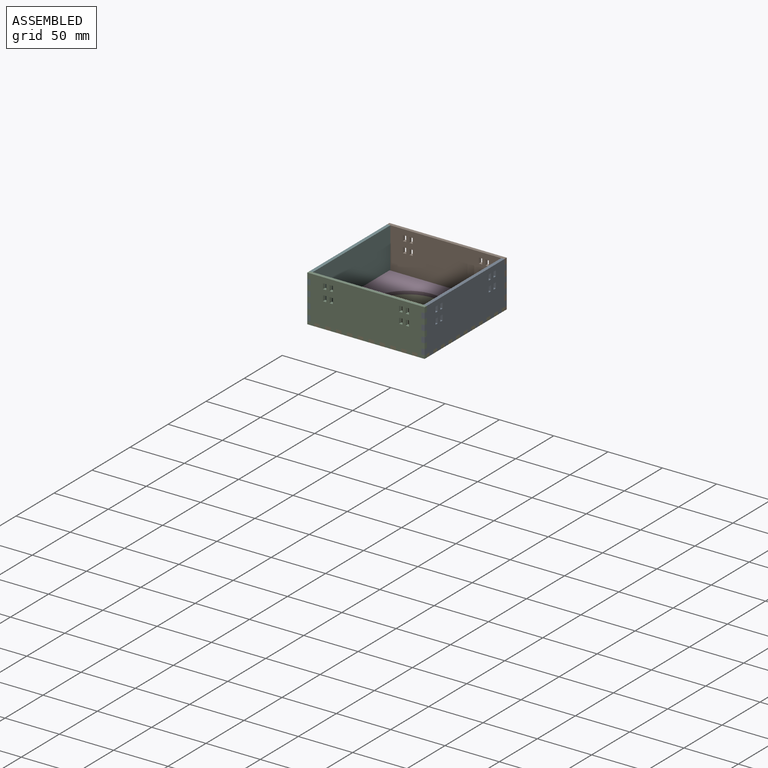
[diagram: assembled view]
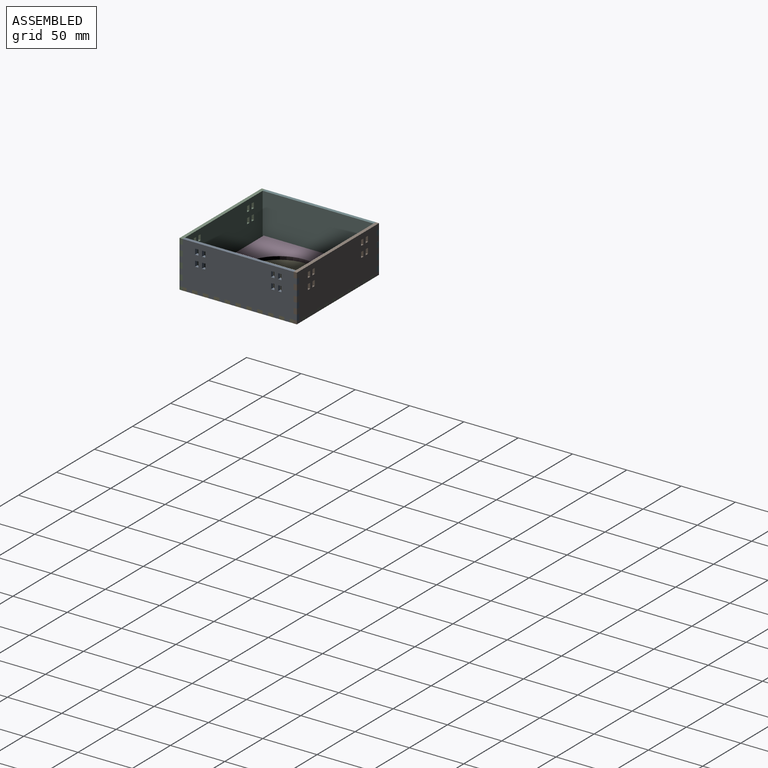
[diagram: assembled view, second angle]
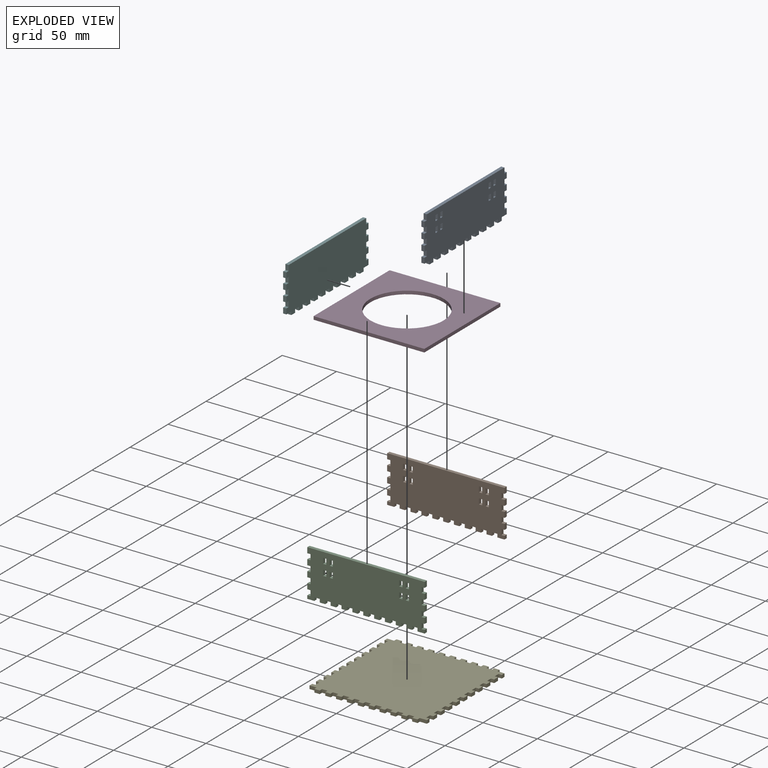
[diagram: exploded view]
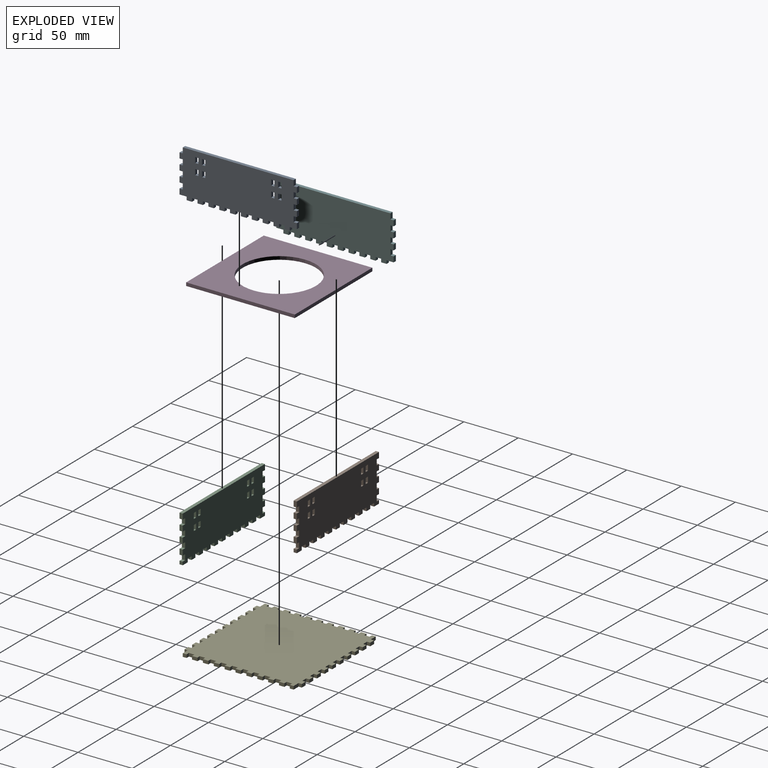
[diagram: exploded view, second angle]
ASSEMBLY  parts=6 mates=4
PART A: 106 faces, bbox 108x3x43 mm
  f0: plane 108x43mm, normal (0,-1,0), area 4230mm2, adj f2,f3,f4,f5,f6,f7,f8,f9
  f1: plane 108x43mm, normal (0,1,0), area 4230mm2, adj f2,f3,f4,f5,f6,f7,f8,f9
  f2: plane 6.5x3mm, normal (0,0,-1), area 19.5mm2, adj f0,f1,f23,f73
  f3: plane 5x3mm, normal (0,0,-1), area 15mm2, adj f0,f1,f68,f72
  f4: plane 5x3mm, normal (0,0,-1), area 15mm2, adj f0,f1,f63,f67
  f5: plane 5x3mm, normal (0,0,-1), area 15mm2, adj f0,f1,f60,f64
  f6: plane 5x3mm, normal (0,0,-1), area 15mm2, adj f0,f1,f61,f70
  f7: plane 5x3mm, normal (0,0,-1), area 15mm2, adj f0,f1,f54,f58
  f8: plane 5x3mm, normal (0,0,-1), area 15mm2, adj f0,f1,f51,f55
  f9: plane 5x3mm, normal (0,0,-1), area 15mm2, adj f0,f1,f48,f52
  f10: plane 5x3mm, normal (0,0,-1), area 15mm2, adj f0,f1,f45,f49
  f11: plane 5x3mm, normal (0,0,-1), area 15mm2, adj f0,f1,f46,f66
  f12: plane 5x3mm, normal (1,0,0), area 15mm2, adj f0,f1,f35,f42
  f13: plane 5x3mm, normal (1,0,0), area 15mm2, adj f0,f1,f38,f41
  f14: plane 5x3mm, normal (1,0,0), area 15mm2, adj f0,f1,f33,f36
  f15: plane 5x3mm, normal (-1,0,0), area 15mm2, adj f0,f1,f28,f30
  f16: plane 5x3mm, normal (-1,0,0), area 15mm2, adj f0,f1,f25,f27
  f17: plane 5x3mm, normal (-1,0,0), area 15mm2, adj f0,f1,f22,f24
  f18: plane 5x3mm, normal (1,0,0), area 15mm2, adj f0,f1,f19,f40
  f19: plane 102x3mm, normal (0,0,1), area 306mm2, adj f0,f1,f18,f20
  f20: plane 5x3mm, normal (-1,0,0), area 15mm2, adj f0,f1,f19,f31
  f21: plane 6.5x3mm, normal (0,0,-1), area 19.5mm2, adj f0,f1,f37,f57
  f22: plane 3x3mm, normal (0,0,1), area 9mm2, adj f0,f1,f17,f23
  f23: plane 5x3mm, normal (-1,0,0), area 15mm2, adj f0,f1,f2,f22
  f24: plane 3x3mm, normal (0,0,-1), area 9mm2, adj f0,f1,f17,f26
  f25: plane 3x3mm, normal (0,0,1), area 9mm2, adj f0,f1,f16,f26
  f26: plane 5x3mm, normal (-1,0,0), area 15mm2, adj f0,f1,f24,f25
  f27: plane 3x3mm, normal (0,0,-1), area 9mm2, adj f0,f1,f16,f29
  f28: plane 3x3mm, normal (0,0,1), area 9mm2, adj f0,f1,f15,f29
  f29: plane 5x3mm, normal (-1,0,0), area 15mm2, adj f0,f1,f27,f28
  f30: plane 3x3mm, normal (0,0,-1), area 9mm2, adj f0,f1,f15,f32
  f31: plane 3x3mm, normal (0,0,1), area 9mm2, adj f0,f1,f20,f32
  f32: plane 5x3mm, normal (-1,0,0), area 15mm2, adj f0,f1,f30,f31
  f33: plane 3x3mm, normal (0,0,-1), area 9mm2, adj f0,f1,f14,f34
  f34: plane 5x3mm, normal (1,0,0), area 15mm2, adj f0,f1,f33,f35
  f35: plane 3x3mm, normal (0,0,1), area 9mm2, adj f0,f1,f12,f34
  f36: plane 3x3mm, normal (0,0,1), area 9mm2, adj f0,f1,f14,f37
  f37: plane 5x3mm, normal (1,0,0), area 15mm2, adj f0,f1,f21,f36
  f38: plane 3x3mm, normal (0,0,-1), area 9mm2, adj f0,f1,f13,f39
  f39: plane 5x3mm, normal (1,0,0), area 15mm2, adj f0,f1,f38,f40
  f40: plane 3x3mm, normal (0,0,1), area 9mm2, adj f0,f1,f18,f39
  f41: plane 3x3mm, normal (0,0,1), area 9mm2, adj f0,f1,f13,f43
  f42: plane 3x3mm, normal (0,0,-1), area 9mm2, adj f0,f1,f12,f43
  f43: plane 5x3mm, normal (1,0,0), area 15mm2, adj f0,f1,f41,f42
  f44: plane 5x3mm, normal (0,0,-1), area 15mm2, adj f0,f1,f45,f46
  f45: plane 3x3mm, normal (1,0,0), area 9mm2, adj f0,f1,f10,f44
  f46: plane 3x3mm, normal (-1,0,0), area 9mm2, adj f0,f1,f11,f44
  f47: plane 5x3mm, normal (0,0,-1), area 15mm2, adj f0,f1,f48,f49
  f48: plane 3x3mm, normal (1,0,0), area 9mm2, adj f0,f1,f9,f47
  f49: plane 3x3mm, normal (-1,0,0), area 9mm2, adj f0,f1,f10,f47
  f50: plane 5x3mm, normal (0,0,-1), area 15mm2, adj f0,f1,f51,f52
  f51: plane 3x3mm, normal (1,0,0), area 9mm2, adj f0,f1,f8,f50
  f52: plane 3x3mm, normal (-1,0,0), area 9mm2, adj f0,f1,f9,f50
  f53: plane 5x3mm, normal (0,0,-1), area 15mm2, adj f0,f1,f54,f55
  f54: plane 3x3mm, normal (1,0,0), area 9mm2, adj f0,f1,f7,f53
  f55: plane 3x3mm, normal (-1,0,0), area 9mm2, adj f0,f1,f8,f53
  f56: plane 5x3mm, normal (0,0,-1), area 15mm2, adj f0,f1,f57,f58
  f57: plane 3x3mm, normal (1,0,0), area 9mm2, adj f0,f1,f21,f56
  f58: plane 3x3mm, normal (-1,0,0), area 9mm2, adj f0,f1,f7,f56
  f59: plane 5x3mm, normal (0,0,-1), area 15mm2, adj f0,f1,f60,f61
  f60: plane 3x3mm, normal (1,0,0), area 9mm2, adj f0,f1,f5,f59
  f61: plane 3x3mm, normal (-1,0,0), area 9mm2, adj f0,f1,f6,f59
  f62: plane 5x3mm, normal (0,0,-1), area 15mm2, adj f0,f1,f63,f64
  f63: plane 3x3mm, normal (1,0,0), area 9mm2, adj f0,f1,f4,f62
  f64: plane 3x3mm, normal (-1,0,0), area 9mm2, adj f0,f1,f5,f62
  f65: plane 5x3mm, normal (0,0,-1), area 15mm2, adj f0,f1,f66,f67
  f66: plane 3x3mm, normal (1,0,0), area 9mm2, adj f0,f1,f11,f65
  f67: plane 3x3mm, normal (-1,0,0), area 9mm2, adj f0,f1,f4,f65
  f68: plane 3x3mm, normal (-1,0,0), area 9mm2, adj f0,f1,f3,f69
  f69: plane 5x3mm, normal (0,0,-1), area 15mm2, adj f0,f1,f68,f70
  f70: plane 3x3mm, normal (1,0,0), area 9mm2, adj f0,f1,f6,f69
  f71: plane 5x3mm, normal (0,0,-1), area 15mm2, adj f0,f1,f72,f73
  f72: plane 3x3mm, normal (1,0,0), area 9mm2, adj f0,f1,f3,f71
  f73: plane 3x3mm, normal (-1,0,0), area 9mm2, adj f0,f1,f2,f71
  f74: plane 3x3mm, normal (0,0,-1), area 9mm2, adj f0,f1,f90,f102
  f75: plane 3x3mm, normal (0,0,1), area 9mm2, adj f0,f1,f90,f102
  f76: plane 3x3mm, normal (0,0,-1), area 9mm2, adj f0,f1,f95,f101
  f77: plane 3x3mm, normal (0,0,1), area 9mm2, adj f0,f1,f95,f101
  f78: plane 3x3mm, normal (0,0,-1), area 9mm2, adj f0,f1,f97,f100
  f79: plane 3x3mm, normal (0,0,1), area 9mm2, adj f0,f1,f97,f100
  f80: plane 3x3mm, normal (0,0,1), area 9mm2, adj f0,f1,f91,f98
  f81: plane 3x3mm, normal (0,0,-1), area 9mm2, adj f0,f1,f91,f98
  f82: plane 3x3mm, normal (0,0,-1), area 9mm2, adj f0,f1,f92,f104
  f83: plane 3x3mm, normal (0,0,1), area 9mm2, adj f0,f1,f92,f104
  f84: plane 3x3mm, normal (0,0,-1), area 9mm2, adj f0,f1,f94,f99
  f85: plane 3x3mm, normal (0,0,1), area 9mm2, adj f0,f1,f94,f99
  f86: plane 3x3mm, normal (0,0,1), area 9mm2, adj f0,f1,f96,f105
  f87: plane 3x3mm, normal (0,0,-1), area 9mm2, adj f0,f1,f96,f105
  f88: plane 3x3mm, normal (0,0,-1), area 9mm2, adj f0,f1,f93,f103
  f89: plane 3x3mm, normal (0,0,1), area 9mm2, adj f0,f1,f93,f103
  f90: plane 5x3mm, normal (1,0,0), area 15mm2, adj f0,f1,f74,f75
  f91: plane 5x3mm, normal (-1,0,0), area 15mm2, adj f0,f1,f80,f81
  f92: plane 5x3mm, normal (1,0,0), area 15mm2, adj f0,f1,f82,f83
  f93: plane 5x3mm, normal (-1,0,0), area 15mm2, adj f0,f1,f88,f89
  f94: plane 5x3mm, normal (-1,0,0), area 15mm2, adj f0,f1,f84,f85
  f95: plane 5x3mm, normal (1,0,0), area 15mm2, adj f0,f1,f76,f77
  f96: plane 5x3mm, normal (-1,0,0), area 15mm2, adj f0,f1,f86,f87
  f97: plane 5x3mm, normal (1,0,0), area 15mm2, adj f0,f1,f78,f79
  f98: plane 5x3mm, normal (1,0,0), area 15mm2, adj f0,f1,f80,f81
  f99: plane 5x3mm, normal (1,0,0), area 15mm2, adj f0,f1,f84,f85
  f100: plane 5x3mm, normal (-1,0,0), area 15mm2, adj f0,f1,f78,f79
  f101: plane 5x3mm, normal (-1,0,0), area 15mm2, adj f0,f1,f76,f77
  f102: plane 5x3mm, normal (-1,0,0), area 15mm2, adj f0,f1,f74,f75
  f103: plane 5x3mm, normal (1,0,0), area 15mm2, adj f0,f1,f88,f89
  f104: plane 5x3mm, normal (-1,0,0), area 15mm2, adj f0,f1,f82,f83
  f105: plane 5x3mm, normal (1,0,0), area 15mm2, adj f0,f1,f86,f87
PART B: 110 faces, bbox 108x3x43 mm
  f0: plane 108x43mm, normal (0,-1,0), area 4254mm2, adj f2,f3,f4,f5,f6,f7,f8,f9
  f1: plane 108x43mm, normal (0,1,0), area 4254mm2, adj f2,f3,f4,f5,f6,f7,f8,f9
  f2: plane 5x3mm, normal (0,0,1), area 15mm2, adj f0,f1,f63,f75
  f3: plane 5x3mm, normal (0,0,1), area 15mm2, adj f0,f1,f74,f76
  f4: plane 5x3mm, normal (0,0,1), area 15mm2, adj f0,f1,f67,f69
  f5: plane 5x3mm, normal (0,0,1), area 15mm2, adj f0,f1,f66,f72
  f6: plane 5x3mm, normal (0,0,1), area 15mm2, adj f0,f1,f56,f61
  f7: plane 5x3mm, normal (0,0,1), area 15mm2, adj f0,f1,f53,f55
  f8: plane 5x3mm, normal (0,0,1), area 15mm2, adj f0,f1,f50,f52
  f9: plane 5x3mm, normal (0,0,1), area 15mm2, adj f0,f1,f47,f49
  f10: plane 5x3mm, normal (0,0,1), area 15mm2, adj f0,f1,f43,f46
  f11: plane 5x3mm, normal (0,0,1), area 15mm2, adj f0,f1,f45,f70
  f12: plane 5x3mm, normal (1,0,0), area 15mm2, adj f0,f1,f34,f41
  f13: plane 5x3mm, normal (1,0,0), area 15mm2, adj f0,f1,f37,f40
  f14: plane 5x3mm, normal (1,0,0), area 15mm2, adj f0,f1,f32,f35
  f15: plane 5x3mm, normal (-1,0,0), area 15mm2, adj f0,f1,f27,f29
  f16: plane 5x3mm, normal (-1,0,0), area 15mm2, adj f0,f1,f24,f26
  f17: plane 5x3mm, normal (-1,0,0), area 15mm2, adj f0,f1,f21,f23
  f18: plane 5x3mm, normal (1,0,0), area 15mm2, adj f0,f1,f39,f62
  f19: plane 5x3mm, normal (-1,0,0), area 15mm2, adj f0,f1,f30,f58
  f20: plane 108x3mm, normal (0,0,-1), area 324mm2, adj f0,f1,f22,f36
  f21: plane 3x3mm, normal (0,0,1), area 9mm2, adj f0,f1,f17,f22
  f22: plane 5x3mm, normal (-1,0,0), area 15mm2, adj f0,f1,f20,f21
  f23: plane 3x3mm, normal (0,0,-1), area 9mm2, adj f0,f1,f17,f25
  f24: plane 3x3mm, normal (0,0,1), area 9mm2, adj f0,f1,f16,f25
  f25: plane 5x3mm, normal (-1,0,0), area 15mm2, adj f0,f1,f23,f24
  f26: plane 3x3mm, normal (0,0,-1), area 9mm2, adj f0,f1,f16,f28
  f27: plane 3x3mm, normal (0,0,1), area 9mm2, adj f0,f1,f15,f28
  f28: plane 5x3mm, normal (-1,0,0), area 15mm2, adj f0,f1,f26,f27
  f29: plane 3x3mm, normal (0,0,-1), area 9mm2, adj f0,f1,f15,f31
  f30: plane 3x3mm, normal (0,0,1), area 9mm2, adj f0,f1,f19,f31
  f31: plane 5x3mm, normal (-1,0,0), area 15mm2, adj f0,f1,f29,f30
  f32: plane 3x3mm, normal (0,0,-1), area 9mm2, adj f0,f1,f14,f33
  f33: plane 5x3mm, normal (1,0,0), area 15mm2, adj f0,f1,f32,f34
  f34: plane 3x3mm, normal (0,0,1), area 9mm2, adj f0,f1,f12,f33
  f35: plane 3x3mm, normal (0,0,1), area 9mm2, adj f0,f1,f14,f36
  f36: plane 5x3mm, normal (1,0,0), area 15mm2, adj f0,f1,f20,f35
  f37: plane 3x3mm, normal (0,0,-1), area 9mm2, adj f0,f1,f13,f38
  f38: plane 5x3mm, normal (1,0,0), area 15mm2, adj f0,f1,f37,f39
  f39: plane 3x3mm, normal (0,0,1), area 9mm2, adj f0,f1,f18,f38
  f40: plane 3x3mm, normal (0,0,1), area 9mm2, adj f0,f1,f13,f42
  f41: plane 3x3mm, normal (0,0,-1), area 9mm2, adj f0,f1,f12,f42
  f42: plane 5x3mm, normal (1,0,0), area 15mm2, adj f0,f1,f40,f41
  f43: plane 3x3mm, normal (-1,0,0), area 9mm2, adj f0,f1,f10,f44
  f44: plane 5x3mm, normal (0,0,1), area 15mm2, adj f0,f1,f43,f45
  f45: plane 3x3mm, normal (1,0,0), area 9mm2, adj f0,f1,f11,f44
  f46: plane 3x3mm, normal (1,0,0), area 9mm2, adj f0,f1,f10,f48
  f47: plane 3x3mm, normal (-1,0,0), area 9mm2, adj f0,f1,f9,f48
  f48: plane 5x3mm, normal (0,0,1), area 15mm2, adj f0,f1,f46,f47
  f49: plane 3x3mm, normal (1,0,0), area 9mm2, adj f0,f1,f9,f51
  f50: plane 3x3mm, normal (-1,0,0), area 9mm2, adj f0,f1,f8,f51
  f51: plane 5x3mm, normal (0,0,1), area 15mm2, adj f0,f1,f49,f50
  f52: plane 3x3mm, normal (1,0,0), area 9mm2, adj f0,f1,f8,f54
  f53: plane 3x3mm, normal (-1,0,0), area 9mm2, adj f0,f1,f7,f54
  f54: plane 5x3mm, normal (0,0,1), area 15mm2, adj f0,f1,f52,f53
  f55: plane 3x3mm, normal (1,0,0), area 9mm2, adj f0,f1,f7,f57
  f56: plane 3x3mm, normal (-1,0,0), area 9mm2, adj f0,f1,f6,f57
  f57: plane 5x3mm, normal (0,0,1), area 15mm2, adj f0,f1,f55,f56
  f58: plane 3x3mm, normal (0,0,-1), area 9mm2, adj f0,f1,f19,f59
  f59: plane 3x3mm, normal (-1,0,0), area 9mm2, adj f0,f1,f58,f60
  f60: plane 6.5x3mm, normal (0,0,1), area 19.5mm2, adj f0,f1,f59,f61
  f61: plane 3x3mm, normal (1,0,0), area 9mm2, adj f0,f1,f6,f60
  f62: plane 3x3mm, normal (0,0,-1), area 9mm2, adj f0,f1,f18,f65
  f63: plane 3x3mm, normal (-1,0,0), area 9mm2, adj f0,f1,f2,f64
  f64: plane 6.5x3mm, normal (0,0,1), area 19.5mm2, adj f0,f1,f63,f65
  f65: plane 3x3mm, normal (1,0,0), area 9mm2, adj f0,f1,f62,f64
  f66: plane 3x3mm, normal (1,0,0), area 9mm2, adj f0,f1,f5,f68
  f67: plane 3x3mm, normal (-1,0,0), area 9mm2, adj f0,f1,f4,f68
  f68: plane 5x3mm, normal (0,0,1), area 15mm2, adj f0,f1,f66,f67
  f69: plane 3x3mm, normal (1,0,0), area 9mm2, adj f0,f1,f4,f71
  f70: plane 3x3mm, normal (-1,0,0), area 9mm2, adj f0,f1,f11,f71
  f71: plane 5x3mm, normal (0,0,1), area 15mm2, adj f0,f1,f69,f70
  f72: plane 3x3mm, normal (-1,0,0), area 9mm2, adj f0,f1,f5,f73
  f73: plane 5x3mm, normal (0,0,1), area 15mm2, adj f0,f1,f72,f74
  f74: plane 3x3mm, normal (1,0,0), area 9mm2, adj f0,f1,f3,f73
  f75: plane 3x3mm, normal (1,0,0), area 9mm2, adj f0,f1,f2,f77
  f76: plane 3x3mm, normal (-1,0,0), area 9mm2, adj f0,f1,f3,f77
  f77: plane 5x3mm, normal (0,0,1), area 15mm2, adj f0,f1,f75,f76
  f78: plane 3x3mm, normal (0,0,1), area 9mm2, adj f0,f1,f79,f81
  f79: plane 5x3mm, normal (-1,0,0), area 15mm2, adj f0,f1,f78,f80
  f80: plane 3x3mm, normal (0,0,-1), area 9mm2, adj f0,f1,f79,f81
  f81: plane 5x3mm, normal (1,0,0), area 15mm2, adj f0,f1,f78,f80
  f82: plane 3x3mm, normal (0,0,-1), area 9mm2, adj f0,f1,f83,f85
  f83: plane 5x3mm, normal (1,0,0), area 15mm2, adj f0,f1,f82,f84
  f84: plane 3x3mm, normal (0,0,1), area 9mm2, adj f0,f1,f83,f85
  f85: plane 5x3mm, normal (-1,0,0), area 15mm2, adj f0,f1,f82,f84
  f86: plane 3x3mm, normal (0,0,1), area 9mm2, adj f0,f1,f87,f89
  f87: plane 5x3mm, normal (-1,0,0), area 15mm2, adj f0,f1,f86,f88
  f88: plane 3x3mm, normal (0,0,-1), area 9mm2, adj f0,f1,f87,f89
  f89: plane 5x3mm, normal (1,0,0), area 15mm2, adj f0,f1,f86,f88
  f90: plane 3x3mm, normal (0,0,1), area 9mm2, adj f0,f1,f91,f93
  f91: plane 5x3mm, normal (-1,0,0), area 15mm2, adj f0,f1,f90,f92
  f92: plane 3x3mm, normal (0,0,-1), area 9mm2, adj f0,f1,f91,f93
  f93: plane 5x3mm, normal (1,0,0), area 15mm2, adj f0,f1,f90,f92
  f94: plane 5x3mm, normal (-1,0,0), area 15mm2, adj f0,f1,f95,f97
  f95: plane 3x3mm, normal (0,0,-1), area 9mm2, adj f0,f1,f94,f96
  f96: plane 5x3mm, normal (1,0,0), area 15mm2, adj f0,f1,f95,f97
  f97: plane 3x3mm, normal (0,0,1), area 9mm2, adj f0,f1,f94,f96
  f98: plane 3x3mm, normal (0,0,-1), area 9mm2, adj f0,f1,f99,f101
  f99: plane 5x3mm, normal (1,0,0), area 15mm2, adj f0,f1,f98,f100
  f100: plane 3x3mm, normal (0,0,1), area 9mm2, adj f0,f1,f99,f101
  f101: plane 5x3mm, normal (-1,0,0), area 15mm2, adj f0,f1,f98,f100
  f102: plane 3x3mm, normal (0,0,-1), area 9mm2, adj f0,f1,f103,f105
  f103: plane 5x3mm, normal (1,0,0), area 15mm2, adj f0,f1,f102,f104
  f104: plane 3x3mm, normal (0,0,1), area 9mm2, adj f0,f1,f103,f105
  f105: plane 5x3mm, normal (-1,0,0), area 15mm2, adj f0,f1,f102,f104
  f106: plane 5x3mm, normal (1,0,0), area 15mm2, adj f0,f1,f107,f109
  f107: plane 3x3mm, normal (0,0,1), area 9mm2, adj f0,f1,f106,f108
  f108: plane 5x3mm, normal (-1,0,0), area 15mm2, adj f0,f1,f107,f109
  f109: plane 3x3mm, normal (0,0,-1), area 9mm2, adj f0,f1,f106,f108
PART C: same geometry as B
PART D: 7 faces, bbox 102x100x3 mm
  f0: plane 100x3mm, normal (1,0,0), area 300mm2, adj f1,f3,f5,f6
  f1: plane 102x3mm, normal (0,1,0), area 306mm2, adj f0,f2,f5,f6
  f2: plane 100x3mm, normal (-1,0,0), area 300mm2, adj f1,f3,f5,f6
  f3: plane 102x3mm, normal (0,-1,0), area 306mm2, adj f0,f2,f5,f6
  f4: cylinder r=33.75mm len=67.5mm, axis (0,0,-1), area 636.2mm2, adj f5,f6
  f5: plane 102x100mm, normal (0,0,1), area 6621.5mm2, adj f0,f1,f2,f3,f4
  f6: plane 102x100mm, normal (0,0,-1), area 6621.5mm2, adj f0,f1,f2,f3,f4
PART E: 166 faces, bbox 108x108x3 mm
  f0: plane 5x3mm, normal (-1,0,0), area 15mm2, adj f42,f43,f140,f163
  f1: plane 6.5x3mm, normal (-1,0,0), area 19.5mm2, adj f42,f43,f104,f160
  f2: plane 5x3mm, normal (-1,0,0), area 15mm2, adj f42,f43,f145,f159
  f3: plane 5x3mm, normal (-1,0,0), area 15mm2, adj f42,f43,f156,f161
  f4: plane 5x3mm, normal (-1,0,0), area 15mm2, adj f42,f43,f143,f153
  f5: plane 5x3mm, normal (-1,0,0), area 15mm2, adj f42,f43,f150,f154
  f6: plane 5x3mm, normal (-1,0,0), area 15mm2, adj f42,f43,f147,f151
  f7: plane 5x3mm, normal (-1,0,0), area 15mm2, adj f42,f43,f142,f164
  f8: plane 5x3mm, normal (-1,0,0), area 15mm2, adj f42,f43,f136,f139
  f9: plane 5x3mm, normal (-1,0,0), area 15mm2, adj f42,f43,f138,f148
  f10: plane 5x3mm, normal (1,0,0), area 15mm2, adj f42,f43,f129,f133
  f11: plane 5x3mm, normal (1,0,0), area 15mm2, adj f42,f43,f108,f130
  f12: plane 5x3mm, normal (1,0,0), area 15mm2, adj f42,f43,f123,f127
  f13: plane 5x3mm, normal (1,0,0), area 15mm2, adj f42,f43,f125,f135
  f14: plane 5x3mm, normal (1,0,0), area 15mm2, adj f42,f43,f121,f132
  f15: plane 6.5x3mm, normal (1,0,0), area 19.5mm2, adj f42,f43,f103,f118
  f16: plane 5x3mm, normal (1,0,0), area 15mm2, adj f42,f43,f115,f120
  f17: plane 5x3mm, normal (1,0,0), area 15mm2, adj f42,f43,f112,f117
  f18: plane 5x3mm, normal (1,0,0), area 15mm2, adj f42,f43,f109,f114
  f19: plane 5x3mm, normal (1,0,0), area 15mm2, adj f42,f43,f106,f111
  f20: plane 5x3mm, normal (0,-1,0), area 15mm2, adj f42,f43,f82,f102
  f21: plane 5x3mm, normal (0,1,0), area 15mm2, adj f42,f43,f56,f101
  f22: plane 5x3mm, normal (0,-1,0), area 15mm2, adj f42,f43,f94,f96
  f23: plane 5x3mm, normal (0,-1,0), area 15mm2, adj f42,f43,f77,f92
  f24: plane 5x3mm, normal (0,-1,0), area 15mm2, adj f42,f43,f89,f105
  f25: plane 5x3mm, normal (0,-1,0), area 15mm2, adj f42,f43,f86,f91
  f26: plane 5x3mm, normal (0,-1,0), area 15mm2, adj f42,f43,f83,f88
  f27: plane 5x3mm, normal (0,-1,0), area 15mm2, adj f42,f43,f80,f95
  f28: plane 5x3mm, normal (0,-1,0), area 15mm2, adj f42,f43,f76,f78
  f29: plane 5x3mm, normal (0,-1,0), area 15mm2, adj f42,f43,f73,f74
  f30: plane 5x3mm, normal (0,-1,0), area 15mm2, adj f42,f43,f71,f85
  f31: plane 5x3mm, normal (0,1,0), area 15mm2, adj f42,f43,f62,f70
  f32: plane 5x3mm, normal (0,1,0), area 15mm2, adj f42,f43,f67,f98
  f33: plane 5x3mm, normal (0,1,0), area 15mm2, adj f42,f43,f64,f65
  f34: plane 5x3mm, normal (0,1,0), area 15mm2, adj f42,f43,f59,f68
  f35: plane 5x3mm, normal (0,1,0), area 15mm2, adj f42,f43,f53,f58
  f36: plane 5x3mm, normal (0,1,0), area 15mm2, adj f42,f43,f50,f55
  f37: plane 5x3mm, normal (0,1,0), area 15mm2, adj f42,f43,f47,f52
  f38: plane 5x3mm, normal (0,1,0), area 15mm2, adj f42,f43,f45,f49
  f39: plane 5x3mm, normal (0,1,0), area 15mm2, adj f42,f43,f44,f60
  f40: plane 6.5x3mm, normal (1,0,0), area 19.5mm2, adj f42,f43,f100,f124
  f41: plane 6.5x3mm, normal (-1,0,0), area 19.5mm2, adj f42,f43,f99,f157
  f42: plane 108x108mm, normal (0,0,1), area 11016mm2, adj f0,f1,f2,f3,f4,f5,f6,f7
  f43: plane 108x108mm, normal (0,0,-1), area 11016mm2, adj f0,f1,f2,f3,f4,f5,f6,f7
  f44: plane 3x3mm, normal (-1,0,0), area 9mm2, adj f39,f42,f43,f46
  f45: plane 3x3mm, normal (1,0,0), area 9mm2, adj f38,f42,f43,f46
  f46: plane 5x3mm, normal (0,1,0), area 15mm2, adj f42,f43,f44,f45
  f47: plane 3x3mm, normal (1,0,0), area 9mm2, adj f37,f42,f43,f48
  f48: plane 5x3mm, normal (0,1,0), area 15mm2, adj f42,f43,f47,f49
  f49: plane 3x3mm, normal (-1,0,0), area 9mm2, adj f38,f42,f43,f48
  f50: plane 3x3mm, normal (1,0,0), area 9mm2, adj f36,f42,f43,f51
  f51: plane 5x3mm, normal (0,1,0), area 15mm2, adj f42,f43,f50,f52
  f52: plane 3x3mm, normal (-1,0,0), area 9mm2, adj f37,f42,f43,f51
  f53: plane 3x3mm, normal (1,0,0), area 9mm2, adj f35,f42,f43,f54
  f54: plane 5x3mm, normal (0,1,0), area 15mm2, adj f42,f43,f53,f55
  f55: plane 3x3mm, normal (-1,0,0), area 9mm2, adj f36,f42,f43,f54
  f56: plane 3x3mm, normal (1,0,0), area 9mm2, adj f21,f42,f43,f57
  f57: plane 5x3mm, normal (0,1,0), area 15mm2, adj f42,f43,f56,f58
  f58: plane 3x3mm, normal (-1,0,0), area 9mm2, adj f35,f42,f43,f57
  f59: plane 3x3mm, normal (-1,0,0), area 9mm2, adj f34,f42,f43,f61
  f60: plane 3x3mm, normal (1,0,0), area 9mm2, adj f39,f42,f43,f61
  f61: plane 5x3mm, normal (0,1,0), area 15mm2, adj f42,f43,f59,f60
  f62: plane 3x3mm, normal (1,0,0), area 9mm2, adj f31,f42,f43,f63
  f63: plane 5x3mm, normal (0,1,0), area 15mm2, adj f42,f43,f62,f64
  f64: plane 3x3mm, normal (-1,0,0), area 9mm2, adj f33,f42,f43,f63
  f65: plane 3x3mm, normal (1,0,0), area 9mm2, adj f33,f42,f43,f66
  f66: plane 5x3mm, normal (0,1,0), area 15mm2, adj f42,f43,f65,f67
  f67: plane 3x3mm, normal (-1,0,0), area 9mm2, adj f32,f42,f43,f66
  f68: plane 3x3mm, normal (1,0,0), area 9mm2, adj f34,f42,f43,f69
  f69: plane 5x3mm, normal (0,1,0), area 15mm2, adj f42,f43,f68,f70
  f70: plane 3x3mm, normal (-1,0,0), area 9mm2, adj f31,f42,f43,f69
  f71: plane 3x3mm, normal (-1,0,0), area 9mm2, adj f30,f42,f43,f72
  f72: plane 5x3mm, normal (0,-1,0), area 15mm2, adj f42,f43,f71,f73
  f73: plane 3x3mm, normal (1,0,0), area 9mm2, adj f29,f42,f43,f72
  f74: plane 3x3mm, normal (-1,0,0), area 9mm2, adj f29,f42,f43,f75
  f75: plane 5x3mm, normal (0,-1,0), area 15mm2, adj f42,f43,f74,f76
  f76: plane 3x3mm, normal (1,0,0), area 9mm2, adj f28,f42,f43,f75
  f77: plane 3x3mm, normal (1,0,0), area 9mm2, adj f23,f42,f43,f79
  f78: plane 3x3mm, normal (-1,0,0), area 9mm2, adj f28,f42,f43,f79
  f79: plane 5x3mm, normal (0,-1,0), area 15mm2, adj f42,f43,f77,f78
  f80: plane 3x3mm, normal (-1,0,0), area 9mm2, adj f27,f42,f43,f81
  f81: plane 5x3mm, normal (0,-1,0), area 15mm2, adj f42,f43,f80,f82
  f82: plane 3x3mm, normal (1,0,0), area 9mm2, adj f20,f42,f43,f81
  f83: plane 3x3mm, normal (-1,0,0), area 9mm2, adj f26,f42,f43,f84
  f84: plane 5x3mm, normal (0,-1,0), area 15mm2, adj f42,f43,f83,f85
  f85: plane 3x3mm, normal (1,0,0), area 9mm2, adj f30,f42,f43,f84
  f86: plane 3x3mm, normal (-1,0,0), area 9mm2, adj f25,f42,f43,f87
  f87: plane 5x3mm, normal (0,-1,0), area 15mm2, adj f42,f43,f86,f88
  f88: plane 3x3mm, normal (1,0,0), area 9mm2, adj f26,f42,f43,f87
  f89: plane 3x3mm, normal (-1,0,0), area 9mm2, adj f24,f42,f43,f90
  f90: plane 5x3mm, normal (0,-1,0), area 15mm2, adj f42,f43,f89,f91
  f91: plane 3x3mm, normal (1,0,0), area 9mm2, adj f25,f42,f43,f90
  f92: plane 3x3mm, normal (-1,0,0), area 9mm2, adj f23,f42,f43,f93
  f93: plane 5x3mm, normal (0,-1,0), area 15mm2, adj f42,f43,f92,f94
  f94: plane 3x3mm, normal (1,0,0), area 9mm2, adj f22,f42,f43,f93
  f95: plane 3x3mm, normal (1,0,0), area 9mm2, adj f27,f42,f43,f97
  f96: plane 3x3mm, normal (-1,0,0), area 9mm2, adj f22,f42,f43,f97
  f97: plane 5x3mm, normal (0,-1,0), area 15mm2, adj f42,f43,f95,f96
  f98: plane 3x3mm, normal (1,0,0), area 9mm2, adj f32,f42,f43,f99
  f99: plane 3.5x3mm, normal (0,1,0), area 10.5mm2, adj f41,f42,f43,f98
  f100: plane 3.5x3mm, normal (0,1,0), area 10.5mm2, adj f40,f42,f43,f101
  f101: plane 3x3mm, normal (-1,0,0), area 9mm2, adj f21,f42,f43,f100
  f102: plane 3x3mm, normal (-1,0,0), area 9mm2, adj f20,f42,f43,f103
  f103: plane 3.5x3mm, normal (0,-1,0), area 10.5mm2, adj f15,f42,f43,f102
  f104: plane 3.5x3mm, normal (0,-1,0), area 10.5mm2, adj f1,f42,f43,f105
  f105: plane 3x3mm, normal (1,0,0), area 9mm2, adj f24,f42,f43,f104
  f106: plane 3x3mm, normal (0,-1,0), area 9mm2, adj f19,f42,f43,f107
  f107: plane 5x3mm, normal (1,0,0), area 15mm2, adj f42,f43,f106,f108
  f108: plane 3x3mm, normal (0,1,0), area 9mm2, adj f11,f42,f43,f107
  f109: plane 3x3mm, normal (0,-1,0), area 9mm2, adj f18,f42,f43,f110
  f110: plane 5x3mm, normal (1,0,0), area 15mm2, adj f42,f43,f109,f111
  f111: plane 3x3mm, normal (0,1,0), area 9mm2, adj f19,f42,f43,f110
  f112: plane 3x3mm, normal (0,-1,0), area 9mm2, adj f17,f42,f43,f113
  f113: plane 5x3mm, normal (1,0,0), area 15mm2, adj f42,f43,f112,f114
  f114: plane 3x3mm, normal (0,1,0), area 9mm2, adj f18,f42,f43,f113
  f115: plane 3x3mm, normal (0,-1,0), area 9mm2, adj f16,f42,f43,f116
  f116: plane 5x3mm, normal (1,0,0), area 15mm2, adj f42,f43,f115,f117
  f117: plane 3x3mm, normal (0,1,0), area 9mm2, adj f17,f42,f43,f116
  f118: plane 3x3mm, normal (0,-1,0), area 9mm2, adj f15,f42,f43,f119
  f119: plane 5x3mm, normal (1,0,0), area 15mm2, adj f42,f43,f118,f120
  f120: plane 3x3mm, normal (0,1,0), area 9mm2, adj f16,f42,f43,f119
  f121: plane 3x3mm, normal (0,-1,0), area 9mm2, adj f14,f42,f43,f122
  f122: plane 5x3mm, normal (1,0,0), area 15mm2, adj f42,f43,f121,f123
  f123: plane 3x3mm, normal (0,1,0), area 9mm2, adj f12,f42,f43,f122
  f124: plane 3x3mm, normal (0,1,0), area 9mm2, adj f40,f42,f43,f126
  f125: plane 3x3mm, normal (0,-1,0), area 9mm2, adj f13,f42,f43,f126
  f126: plane 5x3mm, normal (1,0,0), area 15mm2, adj f42,f43,f124,f125
  f127: plane 3x3mm, normal (0,-1,0), area 9mm2, adj f12,f42,f43,f128
  f128: plane 5x3mm, normal (1,0,0), area 15mm2, adj f42,f43,f127,f129
  f129: plane 3x3mm, normal (0,1,0), area 9mm2, adj f10,f42,f43,f128
  f130: plane 3x3mm, normal (0,-1,0), area 9mm2, adj f11,f42,f43,f131
  f131: plane 5x3mm, normal (1,0,0), area 15mm2, adj f42,f43,f130,f132
  f132: plane 3x3mm, normal (0,1,0), area 9mm2, adj f14,f42,f43,f131
  f133: plane 3x3mm, normal (0,-1,0), area 9mm2, adj f10,f42,f43,f134
  f134: plane 5x3mm, normal (1,0,0), area 15mm2, adj f42,f43,f133,f135
  f135: plane 3x3mm, normal (0,1,0), area 9mm2, adj f13,f42,f43,f134
  f136: plane 3x3mm, normal (0,1,0), area 9mm2, adj f8,f42,f43,f137
  f137: plane 5x3mm, normal (-1,0,0), area 15mm2, adj f42,f43,f136,f138
  f138: plane 3x3mm, normal (0,-1,0), area 9mm2, adj f9,f42,f43,f137
  f139: plane 3x3mm, normal (0,-1,0), area 9mm2, adj f8,f42,f43,f141
  f140: plane 3x3mm, normal (0,1,0), area 9mm2, adj f0,f42,f43,f141
  f141: plane 5x3mm, normal (-1,0,0), area 15mm2, adj f42,f43,f139,f140
  f142: plane 3x3mm, normal (0,-1,0), area 9mm2, adj f7,f42,f43,f144
  f143: plane 3x3mm, normal (0,1,0), area 9mm2, adj f4,f42,f43,f144
  f144: plane 5x3mm, normal (-1,0,0), area 15mm2, adj f42,f43,f142,f143
  f145: plane 3x3mm, normal (0,1,0), area 9mm2, adj f2,f42,f43,f146
  f146: plane 5x3mm, normal (-1,0,0), area 15mm2, adj f42,f43,f145,f147
  f147: plane 3x3mm, normal (0,-1,0), area 9mm2, adj f6,f42,f43,f146
  f148: plane 3x3mm, normal (0,1,0), area 9mm2, adj f9,f42,f43,f149
  f149: plane 5x3mm, normal (-1,0,0), area 15mm2, adj f42,f43,f148,f150
  f150: plane 3x3mm, normal (0,-1,0), area 9mm2, adj f5,f42,f43,f149
  f151: plane 3x3mm, normal (0,1,0), area 9mm2, adj f6,f42,f43,f152
  f152: plane 5x3mm, normal (-1,0,0), area 15mm2, adj f42,f43,f151,f153
  f153: plane 3x3mm, normal (0,-1,0), area 9mm2, adj f4,f42,f43,f152
  f154: plane 3x3mm, normal (0,1,0), area 9mm2, adj f5,f42,f43,f155
  f155: plane 5x3mm, normal (-1,0,0), area 15mm2, adj f42,f43,f154,f156
  f156: plane 3x3mm, normal (0,-1,0), area 9mm2, adj f3,f42,f43,f155
  f157: plane 3x3mm, normal (0,1,0), area 9mm2, adj f41,f42,f43,f158
  f158: plane 5x3mm, normal (-1,0,0), area 15mm2, adj f42,f43,f157,f159
  f159: plane 3x3mm, normal (0,-1,0), area 9mm2, adj f2,f42,f43,f158
  f160: plane 3x3mm, normal (0,-1,0), area 9mm2, adj f1,f42,f43,f162
  f161: plane 3x3mm, normal (0,1,0), area 9mm2, adj f3,f42,f43,f162
  f162: plane 5x3mm, normal (-1,0,0), area 15mm2, adj f42,f43,f160,f161
  f163: plane 3x3mm, normal (0,-1,0), area 9mm2, adj f0,f42,f43,f165
  f164: plane 3x3mm, normal (0,1,0), area 9mm2, adj f7,f42,f43,f165
  f165: plane 5x3mm, normal (-1,0,0), area 15mm2, adj f42,f43,f163,f164
PART F: 74 faces, bbox 108x3x43 mm
  f0: plane 6.5x3mm, normal (0,0,-1), area 19.5mm2, adj f20,f21,f23,f73
  f1: plane 5x3mm, normal (0,0,-1), area 15mm2, adj f20,f21,f68,f72
  f2: plane 5x3mm, normal (0,0,-1), area 15mm2, adj f20,f21,f63,f67
  f3: plane 5x3mm, normal (0,0,-1), area 15mm2, adj f20,f21,f60,f64
  f4: plane 5x3mm, normal (0,0,-1), area 15mm2, adj f20,f21,f61,f70
  f5: plane 5x3mm, normal (0,0,-1), area 15mm2, adj f20,f21,f54,f58
  f6: plane 5x3mm, normal (0,0,-1), area 15mm2, adj f20,f21,f51,f55
  f7: plane 5x3mm, normal (0,0,-1), area 15mm2, adj f20,f21,f48,f52
  f8: plane 5x3mm, normal (0,0,-1), area 15mm2, adj f20,f21,f45,f49
  f9: plane 5x3mm, normal (0,0,-1), area 15mm2, adj f20,f21,f46,f66
  f10: plane 5x3mm, normal (1,0,0), area 15mm2, adj f20,f21,f35,f42
  f11: plane 5x3mm, normal (1,0,0), area 15mm2, adj f20,f21,f38,f41
  f12: plane 5x3mm, normal (1,0,0), area 15mm2, adj f20,f21,f33,f36
  f13: plane 5x3mm, normal (-1,0,0), area 15mm2, adj f20,f21,f28,f30
  f14: plane 5x3mm, normal (-1,0,0), area 15mm2, adj f20,f21,f25,f27
  f15: plane 5x3mm, normal (-1,0,0), area 15mm2, adj f20,f21,f22,f24
  f16: plane 5x3mm, normal (1,0,0), area 15mm2, adj f17,f20,f21,f40
  f17: plane 102x3mm, normal (0,0,1), area 306mm2, adj f16,f18,f20,f21
  f18: plane 5x3mm, normal (-1,0,0), area 15mm2, adj f17,f20,f21,f31
  f19: plane 6.5x3mm, normal (0,0,-1), area 19.5mm2, adj f20,f21,f37,f57
  f20: plane 108x43mm, normal (0,-1,0), area 4350mm2, adj f0,f1,f2,f3,f4,f5,f6,f7
  f21: plane 108x43mm, normal (0,1,0), area 4350mm2, adj f0,f1,f2,f3,f4,f5,f6,f7
  f22: plane 3x3mm, normal (0,0,1), area 9mm2, adj f15,f20,f21,f23
  f23: plane 5x3mm, normal (-1,0,0), area 15mm2, adj f0,f20,f21,f22
  f24: plane 3x3mm, normal (0,0,-1), area 9mm2, adj f15,f20,f21,f26
  f25: plane 3x3mm, normal (0,0,1), area 9mm2, adj f14,f20,f21,f26
  f26: plane 5x3mm, normal (-1,0,0), area 15mm2, adj f20,f21,f24,f25
  f27: plane 3x3mm, normal (0,0,-1), area 9mm2, adj f14,f20,f21,f29
  f28: plane 3x3mm, normal (0,0,1), area 9mm2, adj f13,f20,f21,f29
  f29: plane 5x3mm, normal (-1,0,0), area 15mm2, adj f20,f21,f27,f28
  f30: plane 3x3mm, normal (0,0,-1), area 9mm2, adj f13,f20,f21,f32
  f31: plane 3x3mm, normal (0,0,1), area 9mm2, adj f18,f20,f21,f32
  f32: plane 5x3mm, normal (-1,0,0), area 15mm2, adj f20,f21,f30,f31
  f33: plane 3x3mm, normal (0,0,-1), area 9mm2, adj f12,f20,f21,f34
  f34: plane 5x3mm, normal (1,0,0), area 15mm2, adj f20,f21,f33,f35
  f35: plane 3x3mm, normal (0,0,1), area 9mm2, adj f10,f20,f21,f34
  f36: plane 3x3mm, normal (0,0,1), area 9mm2, adj f12,f20,f21,f37
  f37: plane 5x3mm, normal (1,0,0), area 15mm2, adj f19,f20,f21,f36
  f38: plane 3x3mm, normal (0,0,-1), area 9mm2, adj f11,f20,f21,f39
  f39: plane 5x3mm, normal (1,0,0), area 15mm2, adj f20,f21,f38,f40
  f40: plane 3x3mm, normal (0,0,1), area 9mm2, adj f16,f20,f21,f39
  f41: plane 3x3mm, normal (0,0,1), area 9mm2, adj f11,f20,f21,f43
  f42: plane 3x3mm, normal (0,0,-1), area 9mm2, adj f10,f20,f21,f43
  f43: plane 5x3mm, normal (1,0,0), area 15mm2, adj f20,f21,f41,f42
  f44: plane 5x3mm, normal (0,0,-1), area 15mm2, adj f20,f21,f45,f46
  f45: plane 3x3mm, normal (1,0,0), area 9mm2, adj f8,f20,f21,f44
  f46: plane 3x3mm, normal (-1,0,0), area 9mm2, adj f9,f20,f21,f44
  f47: plane 5x3mm, normal (0,0,-1), area 15mm2, adj f20,f21,f48,f49
  f48: plane 3x3mm, normal (1,0,0), area 9mm2, adj f7,f20,f21,f47
  f49: plane 3x3mm, normal (-1,0,0), area 9mm2, adj f8,f20,f21,f47
  f50: plane 5x3mm, normal (0,0,-1), area 15mm2, adj f20,f21,f51,f52
  f51: plane 3x3mm, normal (1,0,0), area 9mm2, adj f6,f20,f21,f50
  f52: plane 3x3mm, normal (-1,0,0), area 9mm2, adj f7,f20,f21,f50
  f53: plane 5x3mm, normal (0,0,-1), area 15mm2, adj f20,f21,f54,f55
  f54: plane 3x3mm, normal (1,0,0), area 9mm2, adj f5,f20,f21,f53
  f55: plane 3x3mm, normal (-1,0,0), area 9mm2, adj f6,f20,f21,f53
  f56: plane 5x3mm, normal (0,0,-1), area 15mm2, adj f20,f21,f57,f58
  f57: plane 3x3mm, normal (1,0,0), area 9mm2, adj f19,f20,f21,f56
  f58: plane 3x3mm, normal (-1,0,0), area 9mm2, adj f5,f20,f21,f56
  f59: plane 5x3mm, normal (0,0,-1), area 15mm2, adj f20,f21,f60,f61
  f60: plane 3x3mm, normal (1,0,0), area 9mm2, adj f3,f20,f21,f59
  f61: plane 3x3mm, normal (-1,0,0), area 9mm2, adj f4,f20,f21,f59
  f62: plane 5x3mm, normal (0,0,-1), area 15mm2, adj f20,f21,f63,f64
  f63: plane 3x3mm, normal (1,0,0), area 9mm2, adj f2,f20,f21,f62
  f64: plane 3x3mm, normal (-1,0,0), area 9mm2, adj f3,f20,f21,f62
  f65: plane 5x3mm, normal (0,0,-1), area 15mm2, adj f20,f21,f66,f67
  f66: plane 3x3mm, normal (1,0,0), area 9mm2, adj f9,f20,f21,f65
  f67: plane 3x3mm, normal (-1,0,0), area 9mm2, adj f2,f20,f21,f65
  f68: plane 3x3mm, normal (-1,0,0), area 9mm2, adj f1,f20,f21,f69
  f69: plane 5x3mm, normal (0,0,-1), area 15mm2, adj f20,f21,f68,f70
  f70: plane 3x3mm, normal (1,0,0), area 9mm2, adj f4,f20,f21,f69
  f71: plane 5x3mm, normal (0,0,-1), area 15mm2, adj f20,f21,f72,f73
  f72: plane 3x3mm, normal (1,0,0), area 9mm2, adj f1,f20,f21,f71
  f73: plane 3x3mm, normal (-1,0,0), area 9mm2, adj f0,f20,f21,f71
PLACE A rot(axis=(0,0,1),90deg) t=(16.36,-29.03,-14.53)mm
PLACE B rot(axis=(-1,0,0),180deg) t=(-34.64,21.97,-14.53)mm
PLACE C rot(axis=(-1,0,0),180deg) t=(-34.64,-83.03,-14.53)mm
PLACE D t=(-34.64,-29.03,-34.53)mm
PLACE E rot(axis=(0,0,-1),90deg) t=(-34.64,-29.03,-37.53)mm
PLACE F rot(axis=(0,0,-1),90deg) t=(-85.64,-29.03,-14.53)mm
MATE fastened F.f32 <-> B.f0  axis (0,1,0) through (-85.64,24.97,-2.03)mm
MATE fastened D.f4 <-> E.f42  axis (0,0,-1) through (-34.64,-29.03,-34.53)mm
MATE fastened A.f40 <-> B.f35  axis (0,0,1) through (17.86,23.47,0.47)mm
MATE fastened C.f35 <-> A.f31  axis (0,0,-1) through (17.86,-81.53,0.47)mm
